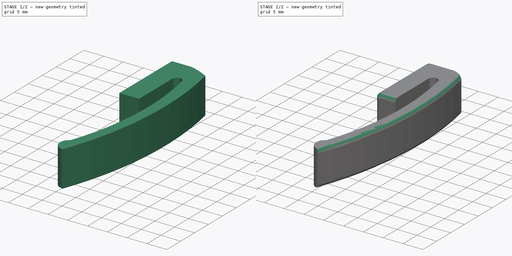
[diagram: build sequence overview — one tinted view per stage of 2, left to right]
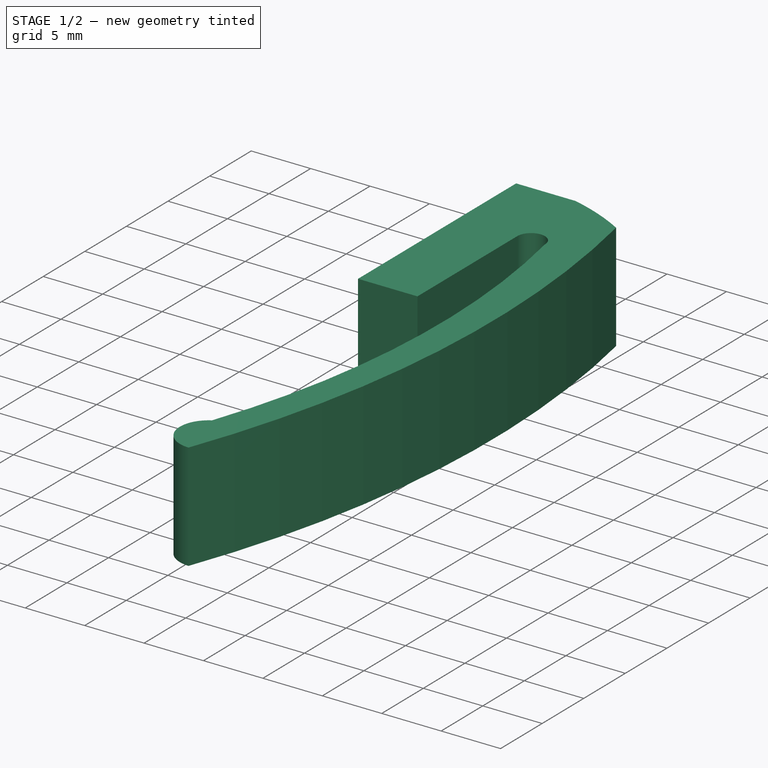
[diagram: stage 1 of 2 — iso view after this stage's code; geometry added in this stage tinted green]
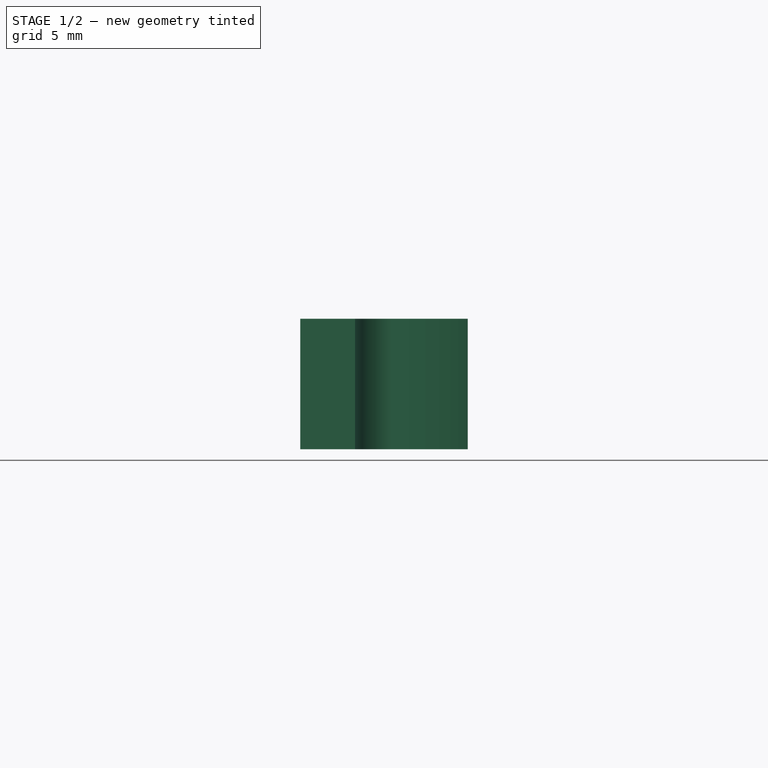
[diagram: stage 1 of 2 — front view after this stage's code; geometry added in this stage tinted green]
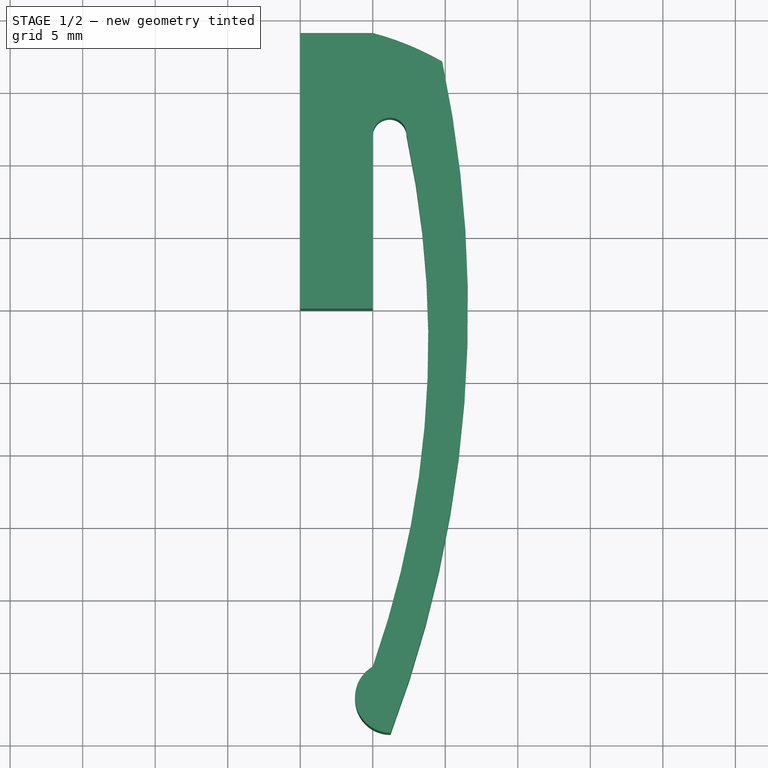
[diagram: stage 1 of 2 — top view after this stage's code; geometry added in this stage tinted green]
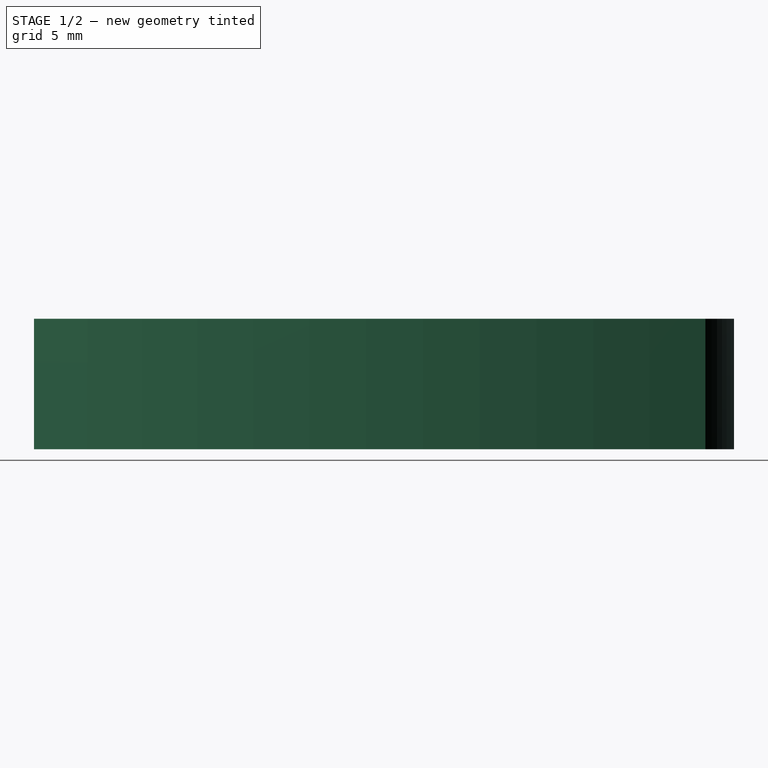
[diagram: stage 1 of 2 — right view after this stage's code; geometry added in this stage tinted green]
FCSTD DOCUMENT  (FreeCAD 0.18R4 (GitTag))
Label: belt_clip
License: All rights reserved
LicenseURL: http://en.wikipedia.org/wiki/All_rights_reserved
objects: Sketcher::SketchObject×1, PartDesign::Pad×1, PartDesign::Fillet×1, PartDesign::Body×1
note: 5 computed .brp shape members not serialized (recipe doc carries the construction recipe); baked Part::Feature solids carry a one-line shape summary decoded from their .brp

FEATURE [Sketcher::SketchObject] Sketch  label="clip profile"
  MapMode = 5
  Support = -> [XY_Plane]
  sketch-geometry (9):
    g0: LineSegment StartX=0 StartY=0 StartZ=0 EndX=0 EndY=19 EndZ=0
    g1: LineSegment StartX=0 StartY=19 StartZ=0 EndX=5 EndY=19 EndZ=0
    g2: LineSegment StartX=0 StartY=0 StartZ=0 EndX=5 EndY=0 EndZ=0
    g3: ArcOfCircle CenterX=0 CenterY=0 CenterZ=0 NormalX=0 NormalY=0 NormalZ=1 AngleXU=0 Radius=19.6469 StartAngle=1.04906 EndAngle=1.31347
    g4: LineSegment StartX=5 StartY=0 StartZ=0 EndX=5 EndY=12 EndZ=0
    g5: ArcOfCircle CenterX=-71.24 CenterY=0 CenterZ=0 NormalX=0 NormalY=0 NormalZ=1 AngleXU=0 Radius=82.8026 StartAngle=5.92209 EndAngle=6.49037
    g6: ArcOfCircle CenterX=6.22273 CenterY=-26.8078 CenterZ=0 NormalX=0 NormalY=0 NormalZ=1 AngleXU=0 Radius=2.44627 StartAngle=2.0942 EndAngle=4.71239
    g7: ArcOfCircle CenterX=-59.12 CenterY=-2.2 CenterZ=0 NormalX=0 NormalY=0 NormalZ=1 AngleXU=0 Radius=67.9495 StartAngle=5.94586 EndAngle=6.49372
    g8: ArcOfCircle CenterX=6.16458 CenterY=12 CenterZ=0 NormalX=0 NormalY=0 NormalZ=1 AngleXU=0 Radius=1.16458 StartAngle=0 EndAngle=3.14159
  constraints (30):
    c: Coincident(g3,g1)
    c: Coincident(g0,g1)
    c: Coincident(g2,g0)
    c: Coincident(g0,g-1)
    c: Vertical(g0)
    c: Horizontal(g1)
    c: Horizontal(g2)
    c: Vertical(g2,g1)
    c: Coincident(g4,g2)
    c: Vertical(g4)
    c: DistanceX(g0,g2) = 5
    c: DistanceY(g0,g0) = 19
    c: Coincident(g5,g3)
    c: Coincident(g6,g5)
    c: Vertical(g5,g6)
    c: Coincident(g7,g6)
    c: Vertical(g6,g2)
    c: Coincident(g8,g7)
    c: Coincident(g8,g4)
    c: Horizontal(g4,g8)
    c: Horizontal(g8,g7)
    c: Coincident(g3,g0)
    c: Angle(g3) = 0.264417
    c: DistanceY(g0,g8) = 12
    c: Angle(g7) = 0.547859
    c: Angle(g5) = 0.568279
    c: Horizontal(g5,g0)
    c: DistanceX(g5,g7) = 12.12
    c: DistanceY(g7,g5) = 2.2
    c: DistanceX(g5,g0) = 71.24
FEATURE [PartDesign::Pad] Pad  label="clip pad"
  Length = 9
  Length2 = 100
  Profile = -> Sketch
  Type = 0
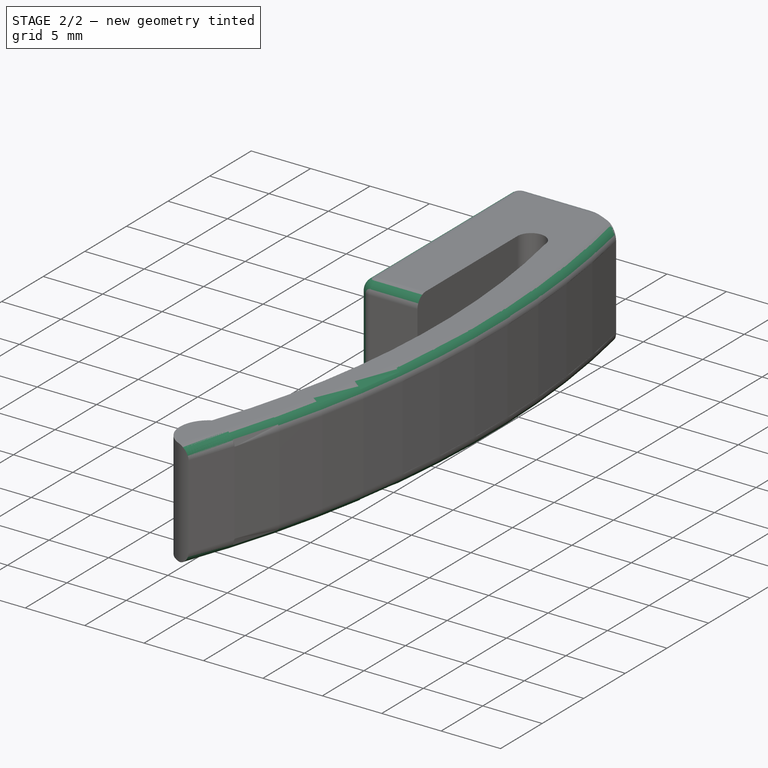
[diagram: stage 2 of 2 — iso view after this stage's code; geometry added in this stage tinted green]
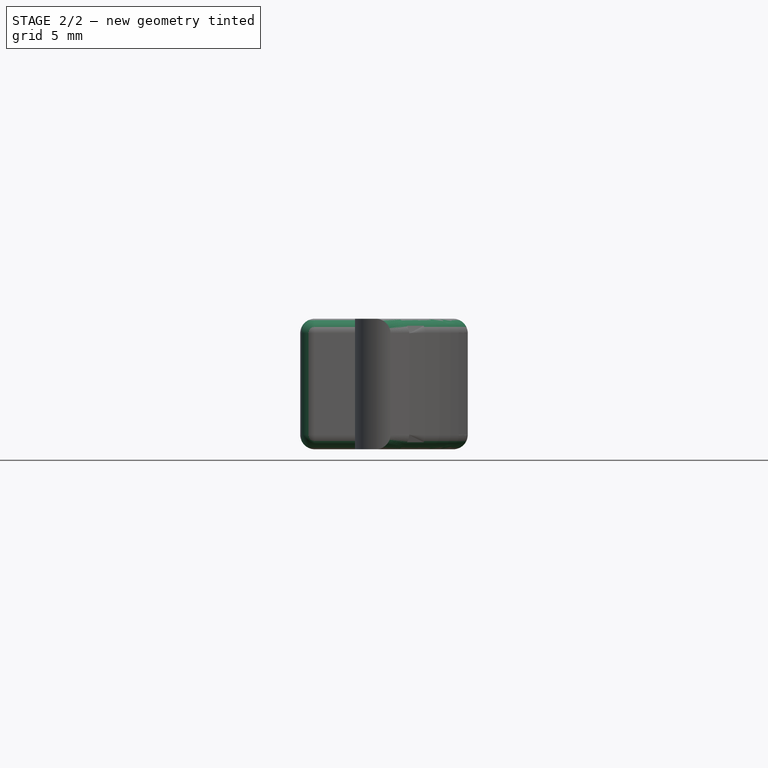
[diagram: stage 2 of 2 — front view after this stage's code; geometry added in this stage tinted green]
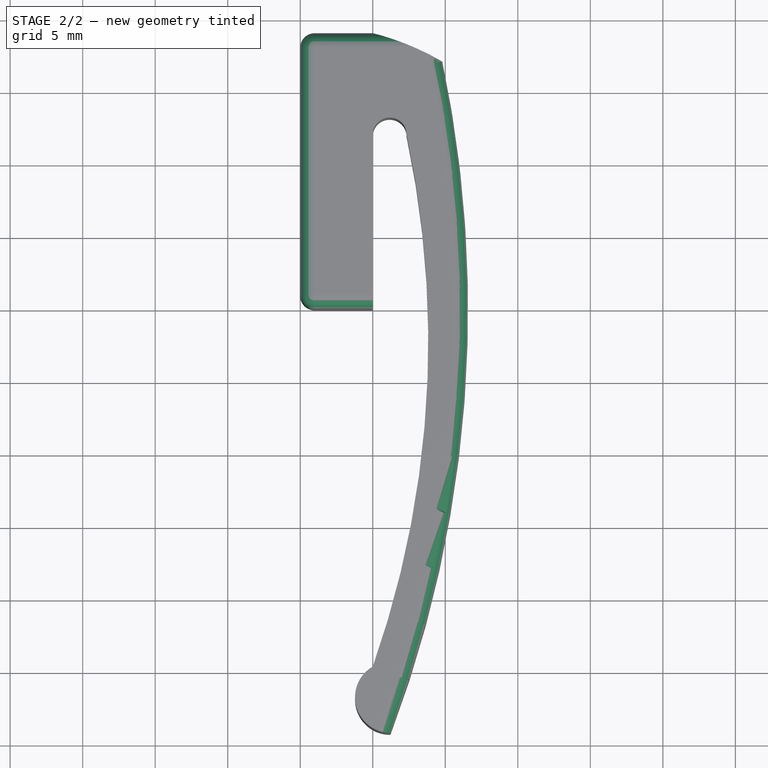
[diagram: stage 2 of 2 — top view after this stage's code; geometry added in this stage tinted green]
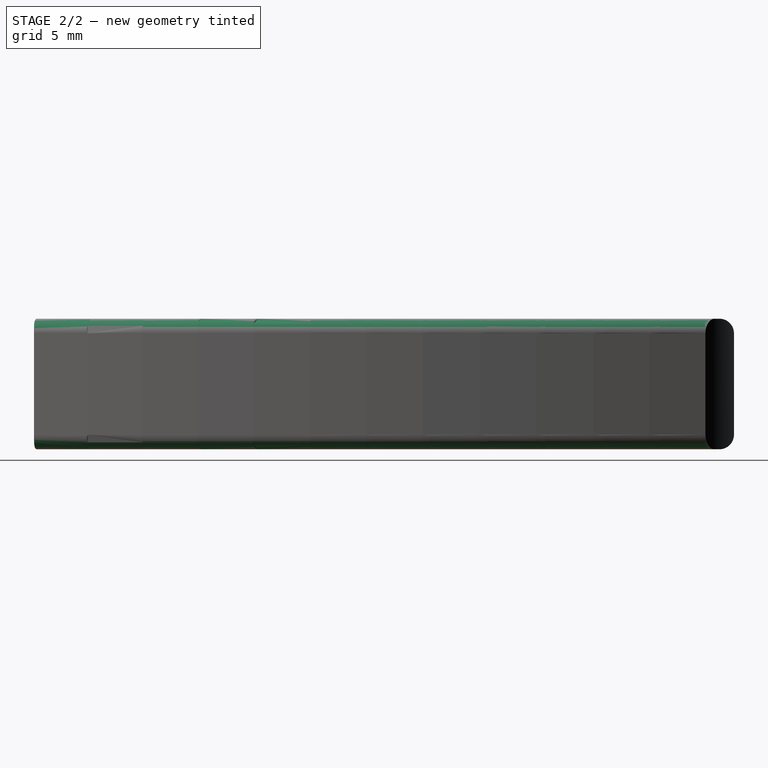
[diagram: stage 2 of 2 — right view after this stage's code; geometry added in this stage tinted green]
FEATURE [PartDesign::Fillet] Fillet  label="clip fillet"
  Base = -> Pad [Face1,Edge7,Edge6,Edge26,Edge27,Edge13,Edge12]
  BaseFeature = -> Pad
  Radius = 1
FEATURE [PartDesign::Body] Body
  Group = -> [Sketch,Pad,Fillet]
  Origin = -> Origin
  Tip = -> Fillet
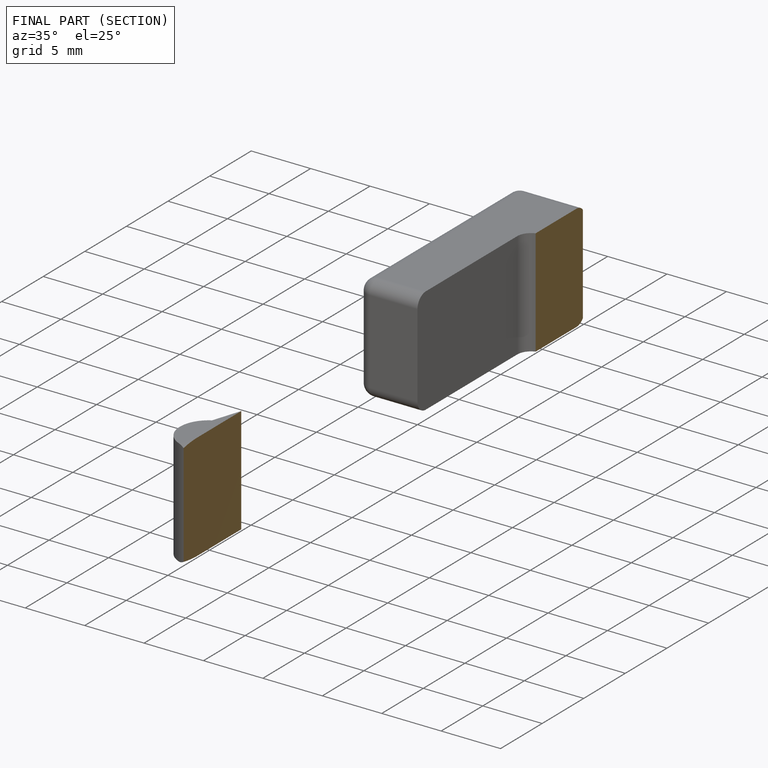
[diagram: finished part — half-section view (interior)]
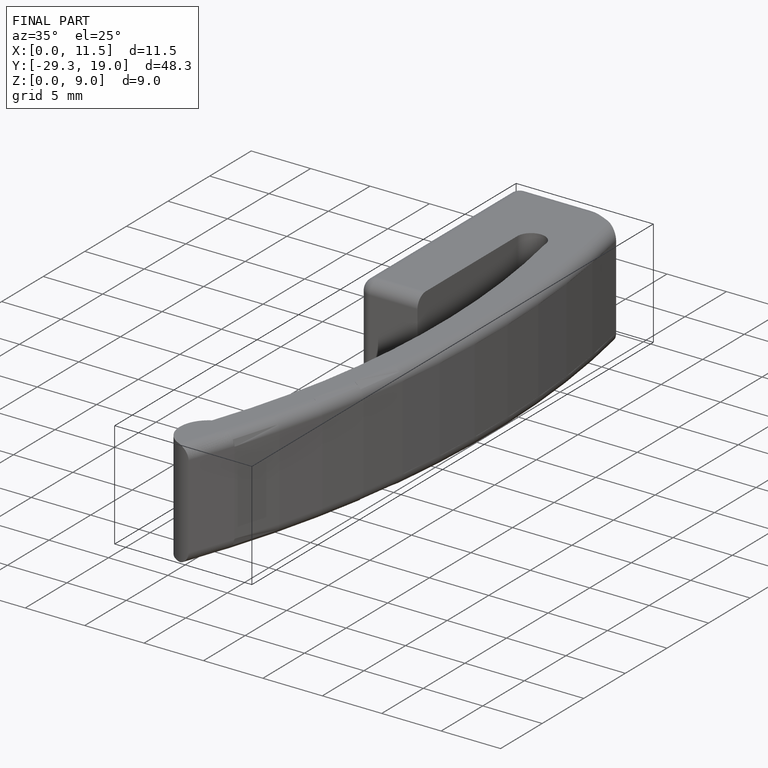
[diagram: finished part — iso view with bounding-box wireframe]
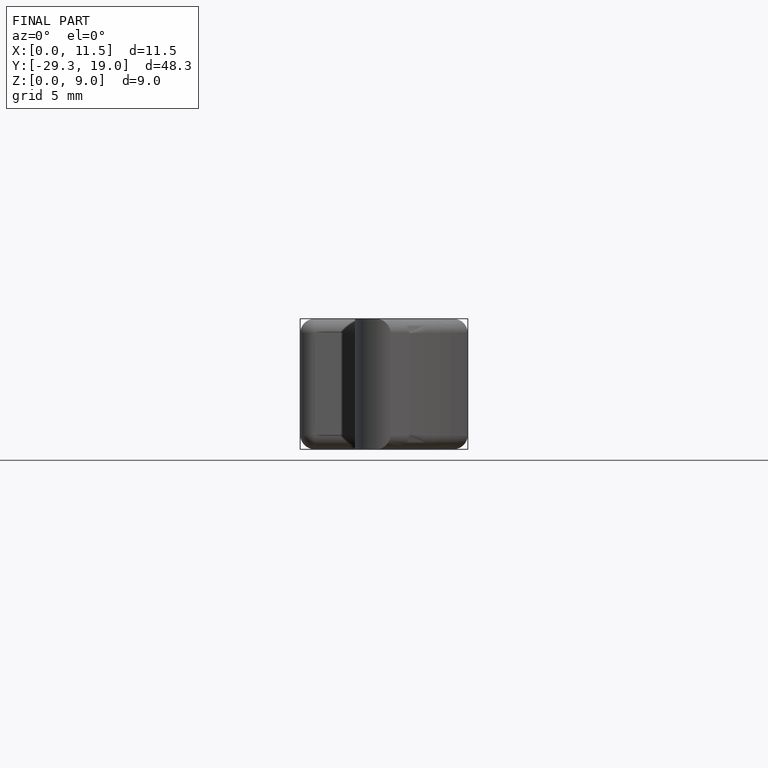
[diagram: finished part — front view with bounding-box wireframe]
